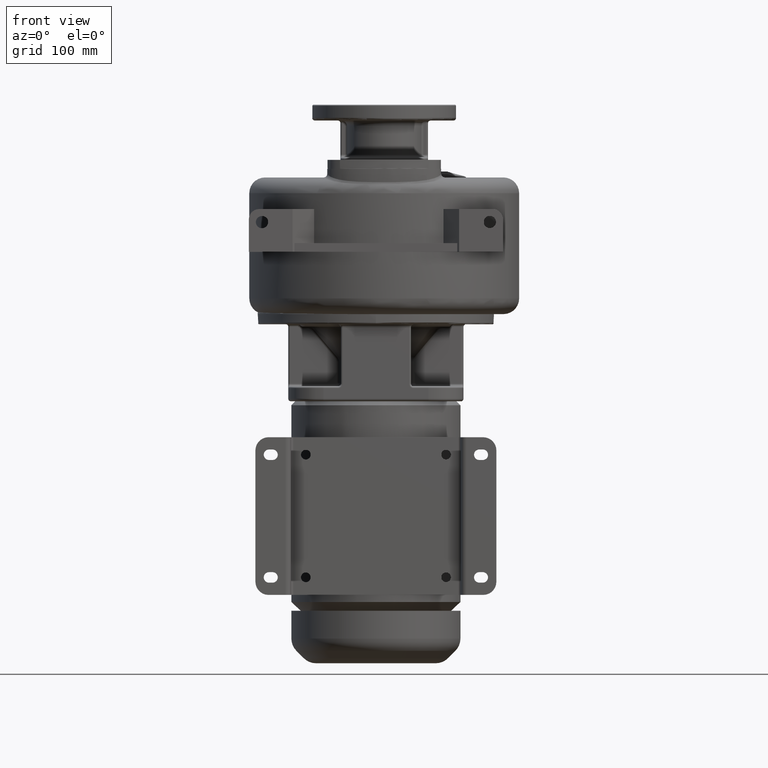
[diagram: clean part render]
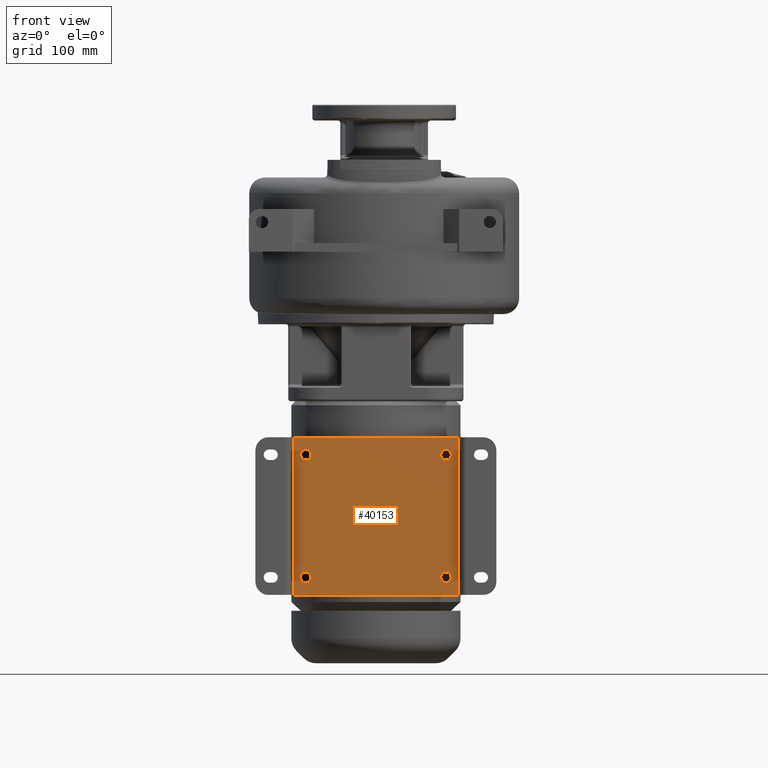
[diagram: same view with one face highlighted and labeled with its STEP entity id]
A machine part, front view. The second image highlights one B-rep face of the part: STEP entity #40153.
In plain terms, the highlighted planar face has unit normal (0, 1, 0).
Its self-contained STEP definition (entity closure, byte-faithful):
#17107=DIRECTION('',(-1.E0,0.E0,0.E0));
#17108=VECTOR('',#17107,1.88E2);
#17109=CARTESIAN_POINT('',(9.4E1,-1.03E2,-4.3E1));
#17110=LINE('',#17109,#17108);
#17225=DIRECTION('',(0.E0,0.E0,1.E0));
#17226=VECTOR('',#17225,1.8E2);
#17227=CARTESIAN_POINT('',(9.4E1,-1.03E2,-2.23E2));
#17228=LINE('',#17227,#17226);
#17229=CARTESIAN_POINT('',(8.E1,-1.03E2,-6.3E1));
#17230=DIRECTION('',(0.E0,1.E0,0.E0));
#17231=DIRECTION('',(0.E0,0.E0,1.E0));
#17232=AXIS2_PLACEMENT_3D('',#17229,#17230,#17231);
#17234=CARTESIAN_POINT('',(8.E1,-1.03E2,-6.3E1));
#17235=DIRECTION('',(0.E0,1.E0,0.E0));
#17236=DIRECTION('',(0.E0,0.E0,-1.E0));
#17237=AXIS2_PLACEMENT_3D('',#17234,#17235,#17236);
#17239=CARTESIAN_POINT('',(-8.E1,-1.03E2,-6.3E1));
#17240=DIRECTION('',(0.E0,1.E0,0.E0));
#17241=DIRECTION('',(0.E0,0.E0,1.E0));
#17242=AXIS2_PLACEMENT_3D('',#17239,#17240,#17241);
#17244=CARTESIAN_POINT('',(-8.E1,-1.03E2,-6.3E1));
#17245=DIRECTION('',(0.E0,1.E0,0.E0));
#17246=DIRECTION('',(0.E0,0.E0,-1.E0));
#17247=AXIS2_PLACEMENT_3D('',#17244,#17245,#17246);
#17249=CARTESIAN_POINT('',(8.E1,-1.03E2,-2.03E2));
#17250=DIRECTION('',(0.E0,1.E0,0.E0));
#17251=DIRECTION('',(0.E0,0.E0,1.E0));
#17252=AXIS2_PLACEMENT_3D('',#17249,#17250,#17251);
#17254=CARTESIAN_POINT('',(8.E1,-1.03E2,-2.03E2));
#17255=DIRECTION('',(0.E0,1.E0,0.E0));
#17256=DIRECTION('',(0.E0,0.E0,-1.E0));
#17257=AXIS2_PLACEMENT_3D('',#17254,#17255,#17256);
#17259=CARTESIAN_POINT('',(-8.E1,-1.03E2,-2.03E2));
#17260=DIRECTION('',(0.E0,1.E0,0.E0));
#17261=DIRECTION('',(0.E0,0.E0,1.E0));
#17262=AXIS2_PLACEMENT_3D('',#17259,#17260,#17261);
#17264=CARTESIAN_POINT('',(-8.E1,-1.03E2,-2.03E2));
#17265=DIRECTION('',(0.E0,1.E0,0.E0));
#17266=DIRECTION('',(0.E0,0.E0,-1.E0));
#17267=AXIS2_PLACEMENT_3D('',#17264,#17265,#17266);
#17277=DIRECTION('',(-1.E0,0.E0,0.E0));
#17278=VECTOR('',#17277,1.88E2);
#17279=CARTESIAN_POINT('',(9.4E1,-1.03E2,-2.23E2));
#17280=LINE('',#17279,#17278);
#17539=DIRECTION('',(0.E0,0.E0,1.E0));
#17540=VECTOR('',#17539,1.8E2);
#17541=CARTESIAN_POINT('',(-9.4E1,-1.03E2,-2.23E2));
#17542=LINE('',#17541,#17540);
#18137=CARTESIAN_POINT('',(9.4E1,-1.03E2,-2.23E2));
#18138=VERTEX_POINT('',#18137);
#18139=CARTESIAN_POINT('',(-9.4E1,-1.03E2,-2.23E2));
#18140=VERTEX_POINT('',#18139);
#18153=CARTESIAN_POINT('',(9.4E1,-1.03E2,-4.3E1));
#18154=VERTEX_POINT('',#18153);
#18155=CARTESIAN_POINT('',(-9.4E1,-1.03E2,-4.3E1));
#18156=VERTEX_POINT('',#18155);
#18211=CARTESIAN_POINT('',(-8.E1,-1.03E2,-1.97E2));
#18212=CARTESIAN_POINT('',(-8.E1,-1.03E2,-2.09E2));
#18213=VERTEX_POINT('',#18211);
#18214=VERTEX_POINT('',#18212);
#18215=CARTESIAN_POINT('',(8.E1,-1.03E2,-1.97E2));
#18216=CARTESIAN_POINT('',(8.E1,-1.03E2,-2.09E2));
#18217=VERTEX_POINT('',#18215);
#18218=VERTEX_POINT('',#18216);
#18219=CARTESIAN_POINT('',(-8.E1,-1.03E2,-5.7E1));
#18220=CARTESIAN_POINT('',(-8.E1,-1.03E2,-6.9E1));
#18221=VERTEX_POINT('',#18219);
#18222=VERTEX_POINT('',#18220);
#18223=CARTESIAN_POINT('',(8.E1,-1.03E2,-5.7E1));
#18224=CARTESIAN_POINT('',(8.E1,-1.03E2,-6.9E1));
#18225=VERTEX_POINT('',#18223);
#18226=VERTEX_POINT('',#18224);
#40117=CARTESIAN_POINT('',(9.4E1,-1.03E2,-2.23E2));
#40118=DIRECTION('',(0.E0,1.E0,0.E0));
#40119=DIRECTION('',(-1.E0,0.E0,0.E0));
#40120=AXIS2_PLACEMENT_3D('',#40117,#40118,#40119);
#40121=PLANE('',#40120);
#40123=ORIENTED_EDGE('',*,*,#40122,.T.);
#40125=ORIENTED_EDGE('',*,*,#40124,.T.);
#40126=ORIENTED_EDGE('',*,*,#39951,.F.);
#40128=ORIENTED_EDGE('',*,*,#40127,.F.);
#40129=EDGE_LOOP('',(#40123,#40125,#40126,#40128));
#40130=FACE_OUTER_BOUND('',#40129,.F.);
#40131=ORIENTED_EDGE('',*,*,#40097,.F.);
#40132=ORIENTED_EDGE('',*,*,#40111,.F.);
#40133=EDGE_LOOP('',(#40131,#40132));
#40134=FACE_BOUND('',#40133,.F.);
#40136=ORIENTED_EDGE('',*,*,#40135,.F.);
#40138=ORIENTED_EDGE('',*,*,#40137,.F.);
#40139=EDGE_LOOP('',(#40136,#40138));
#40140=FACE_BOUND('',#40139,.F.);
#40142=ORIENTED_EDGE('',*,*,#40141,.F.);
#40144=ORIENTED_EDGE('',*,*,#40143,.F.);
#40145=EDGE_LOOP('',(#40142,#40144));
#40146=FACE_BOUND('',#40145,.F.);
#40148=ORIENTED_EDGE('',*,*,#40147,.F.);
#40150=ORIENTED_EDGE('',*,*,#40149,.F.);
#40151=EDGE_LOOP('',(#40148,#40150));
#40152=FACE_BOUND('',#40151,.F.);
#40153=ADVANCED_FACE('',(#40130,#40134,#40140,#40146,#40152),#40121,.F.);
#17233=CIRCLE('',#17232,6.E0);
#17238=CIRCLE('',#17237,6.E0);
#17243=CIRCLE('',#17242,6.E0);
#17248=CIRCLE('',#17247,6.E0);
#17253=CIRCLE('',#17252,6.E0);
#17258=CIRCLE('',#17257,6.E0);
#17263=CIRCLE('',#17262,6.E0);
#17268=CIRCLE('',#17267,6.E0);
#39951=EDGE_CURVE('',#18154,#18156,#17110,.T.);
#40097=EDGE_CURVE('',#18225,#18226,#17233,.T.);
#40111=EDGE_CURVE('',#18226,#18225,#17238,.T.);
#40122=EDGE_CURVE('',#18138,#18140,#17280,.T.);
#40124=EDGE_CURVE('',#18140,#18156,#17542,.T.);
#40127=EDGE_CURVE('',#18138,#18154,#17228,.T.);
#40135=EDGE_CURVE('',#18221,#18222,#17243,.T.);
#40137=EDGE_CURVE('',#18222,#18221,#17248,.T.);
#40141=EDGE_CURVE('',#18217,#18218,#17253,.T.);
#40143=EDGE_CURVE('',#18218,#18217,#17258,.T.);
#40147=EDGE_CURVE('',#18213,#18214,#17263,.T.);
#40149=EDGE_CURVE('',#18214,#18213,#17268,.T.);